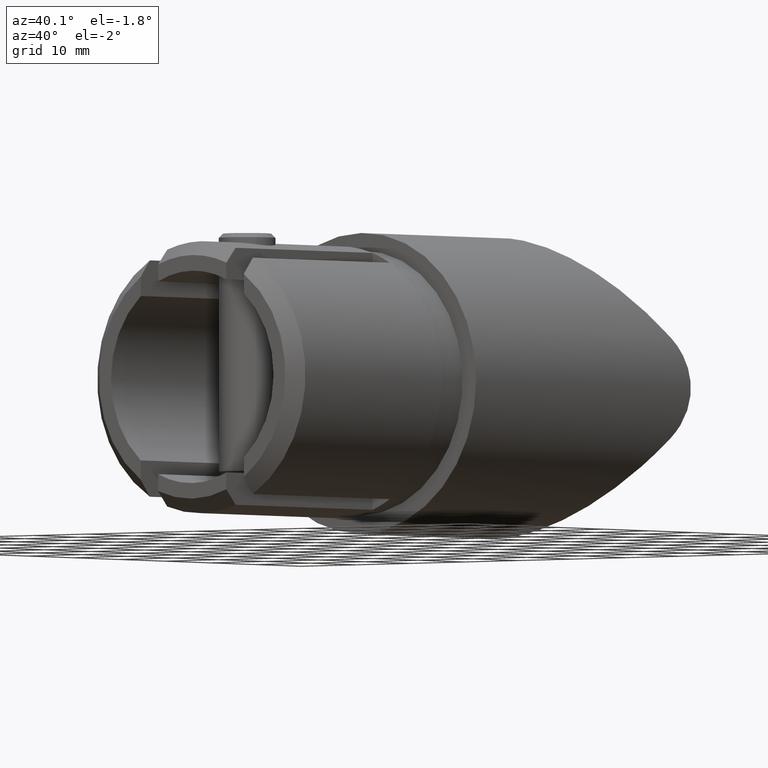
[diagram: clean part render]
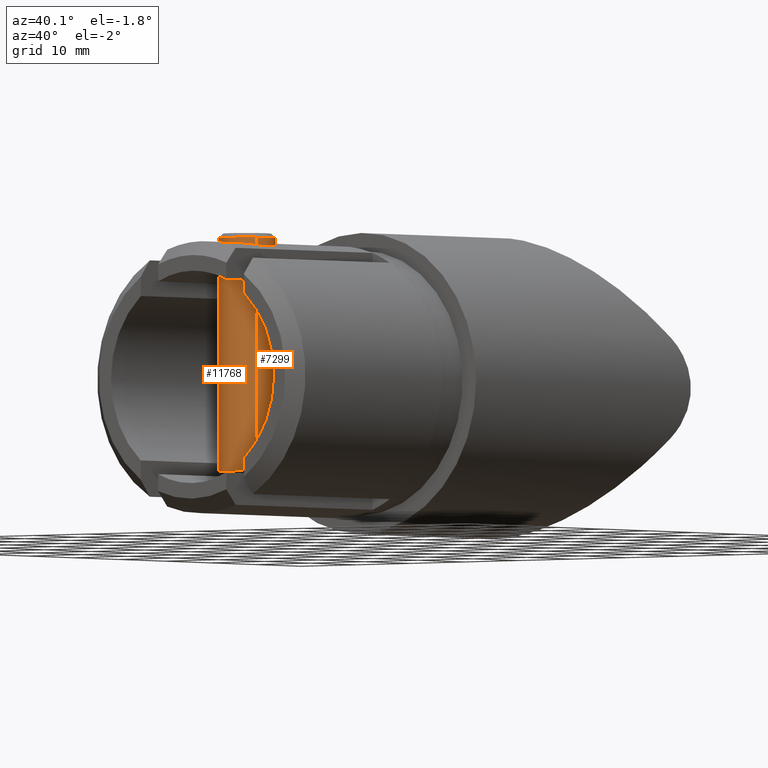
[diagram: same view with one multi-face feature highlighted, each face labeled with its STEP entity id]
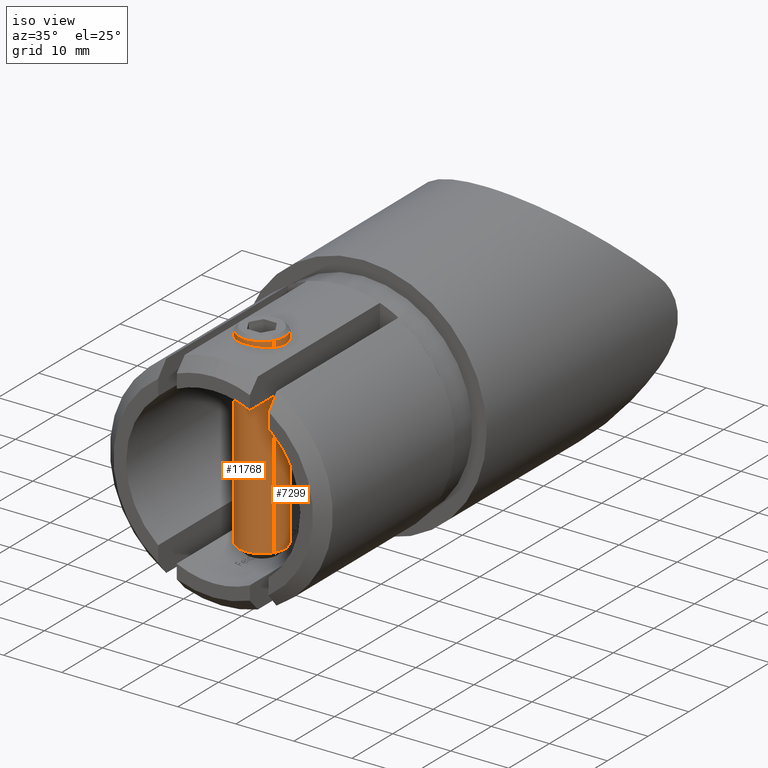
[diagram: same view with one multi-face feature highlighted, each face labeled with its STEP entity id]
A machine part, auxiliary view. The highlighted faces form ONE feature: a constant-radius fillet chain: 2 tangent blend faces with common blend radius 4 mm. The faces share edges in the B-rep.
A second angle (iso view) of the same feature is appended — it is thin or edge-on in the first view.
Their STEP definitions:
[1] entity #7299 (Cylinder):
#329 = FACE_OUTER_BOUND ( 'NONE', #10681, .T. ) ;
#516 = CARTESIAN_POINT ( 'NONE',  ( 34.39999999999999900, 0.0000000000000000000, 0.0000000000000000000 ) ) ;
#563 = DIRECTION ( 'NONE',  ( -1.000000000000000000, 0.0000000000000000000, 0.0000000000000000000 ) ) ;
#940 = VECTOR ( 'NONE', #1362, 1000.000000000000000 ) ;
#1211 = ORIENTED_EDGE ( 'NONE', *, *, #5603, .T. ) ;
#1362 = DIRECTION ( 'NONE',  ( -1.000000000000000000, -0.0000000000000000000, -0.0000000000000000000 ) ) ;
#1848 = CIRCLE ( 'NONE', #11188, 4.000000000000000000 ) ;
#2180 = DIRECTION ( 'NONE',  ( -1.000000000000000000, -0.0000000000000000000, -0.0000000000000000000 ) ) ;
#2221 = EDGE_CURVE ( 'NONE', #11868, #7661, #8798, .T. ) ;
#2240 = CARTESIAN_POINT ( 'NONE',  ( 1.399999999999984400, 4.898587196589412800E-016, -4.000000000000000000 ) ) ;
#2951 = ORIENTED_EDGE ( 'NONE', *, *, #11645, .T. ) ;
#3345 = DIRECTION ( 'NONE',  ( -1.000000000000000000, 3.242134472605236300E-017, -0.0000000000000000000 ) ) ;
#3687 = VERTEX_POINT ( 'NONE', #2240 ) ;
#4106 = CARTESIAN_POINT ( 'NONE',  ( 34.39999999999999900, 4.898587196589412800E-016, -4.000000000000000000 ) ) ;
#4147 = EDGE_CURVE ( 'NONE', #5419, #3687, #6231, .T. ) ;
#4290 = CARTESIAN_POINT ( 'NONE',  ( 1.399999999999984400, -4.538988261647280400E-017, 0.0000000000000000000 ) ) ;
#4649 = CARTESIAN_POINT ( 'NONE',  ( 35.00000000000000000, 0.0000000000000000000, 4.000000000000000000 ) ) ;
#5381 = DIRECTION ( 'NONE',  ( -5.421010862427522200E-017, -1.000000000000000000, 0.0000000000000000000 ) ) ;
#5419 = VERTEX_POINT ( 'NONE', #10286 ) ;
#5528 = ORIENTED_EDGE ( 'NONE', *, *, #4147, .F. ) ;
#5603 = EDGE_CURVE ( 'NONE', #11868, #7201, #12631, .T. ) ;
#5700 = CARTESIAN_POINT ( 'NONE',  ( 1.399999999999984400, -4.538988261647280400E-017, 0.0000000000000000000 ) ) ;
#5792 = DIRECTION ( 'NONE',  ( -5.421010862427522200E-017, -1.000000000000000000, 0.0000000000000000000 ) ) ;
#6231 = CIRCLE ( 'NONE', #10540, 4.000000000000000000 ) ;
#6305 = VECTOR ( 'NONE', #8899, 1000.000000000000000 ) ;
#6355 = CARTESIAN_POINT ( 'NONE',  ( 35.00000000000000000, 4.898587196589412800E-016, -4.000000000000000000 ) ) ;
#6395 = ORIENTED_EDGE ( 'NONE', *, *, #2221, .F. ) ;
#6707 = AXIS2_PLACEMENT_3D ( 'NONE', #516, #563, #12077 ) ;
#6924 = LINE ( 'NONE', #6355, #940 ) ;
#7201 = VERTEX_POINT ( 'NONE', #4106 ) ;
#7299 = ADVANCED_FACE ( 'NONE', ( #329 ), #12723, .T. ) ;
#7661 = VERTEX_POINT ( 'NONE', #8211 ) ;
#7966 = DIRECTION ( 'NONE',  ( -1.000000000000000000, 3.242134472605236300E-017, -0.0000000000000000000 ) ) ;
#8211 = CARTESIAN_POINT ( 'NONE',  ( 1.399999999999984400, 0.0000000000000000000, 4.000000000000000000 ) ) ;
#8226 = CARTESIAN_POINT ( 'NONE',  ( 35.00000000000000000, 0.0000000000000000000, 0.0000000000000000000 ) ) ;
#8798 = LINE ( 'NONE', #4649, #6305 ) ;
#8899 = DIRECTION ( 'NONE',  ( -1.000000000000000000, -0.0000000000000000000, -0.0000000000000000000 ) ) ;
#9277 = DIRECTION ( 'NONE',  ( 0.0000000000000000000, 0.0000000000000000000, 1.000000000000000000 ) ) ;
#10286 = CARTESIAN_POINT ( 'NONE',  ( 1.399999999999984400, 4.000000000000000000, 0.0000000000000000000 ) ) ;
#10540 = AXIS2_PLACEMENT_3D ( 'NONE', #5700, #7966, #5792 ) ;
#10681 = EDGE_LOOP ( 'NONE', ( #1211, #2951, #5528, #12947, #6395 ) ) ;
#11012 = EDGE_CURVE ( 'NONE', #7661, #5419, #1848, .T. ) ;
#11188 = AXIS2_PLACEMENT_3D ( 'NONE', #4290, #3345, #5381 ) ;
#11390 = CARTESIAN_POINT ( 'NONE',  ( 34.39999999999999900, 0.0000000000000000000, 4.000000000000000000 ) ) ;
#11645 = EDGE_CURVE ( 'NONE', #7201, #3687, #6924, .T. ) ;
#11868 = VERTEX_POINT ( 'NONE', #11390 ) ;
#12077 = DIRECTION ( 'NONE',  ( 0.0000000000000000000, 0.0000000000000000000, -1.000000000000000000 ) ) ;
#12511 = AXIS2_PLACEMENT_3D ( 'NONE', #8226, #2180, #9277 ) ;
#12631 = CIRCLE ( 'NONE', #6707, 4.000000000000000000 ) ;
#12723 = CYLINDRICAL_SURFACE ( 'NONE', #12511, 4.000000000000000000 ) ;
#12947 = ORIENTED_EDGE ( 'NONE', *, *, #11012, .F. ) ;
[2] entity #11768 (Cylinder):
#442 = CYLINDRICAL_SURFACE ( 'NONE', #3175, 4.000000000000000000 ) ;
#940 = VECTOR ( 'NONE', #1362, 1000.000000000000000 ) ;
#1074 = EDGE_CURVE ( 'NONE', #3687, #9748, #4647, .T. ) ;
#1362 = DIRECTION ( 'NONE',  ( -1.000000000000000000, -0.0000000000000000000, -0.0000000000000000000 ) ) ;
#1436 = EDGE_CURVE ( 'NONE', #9748, #7661, #8897, .T. ) ;
#1466 = ORIENTED_EDGE ( 'NONE', *, *, #11645, .F. ) ;
#2221 = EDGE_CURVE ( 'NONE', #11868, #7661, #8798, .T. ) ;
#2240 = CARTESIAN_POINT ( 'NONE',  ( 1.399999999999984400, 4.898587196589412800E-016, -4.000000000000000000 ) ) ;
#2562 = CARTESIAN_POINT ( 'NONE',  ( 34.39999999999999900, 0.0000000000000000000, 0.0000000000000000000 ) ) ;
#2709 = ORIENTED_EDGE ( 'NONE', *, *, #1074, .F. ) ;
#3113 = DIRECTION ( 'NONE',  ( 0.0000000000000000000, 0.0000000000000000000, 1.000000000000000000 ) ) ;
#3175 = AXIS2_PLACEMENT_3D ( 'NONE', #10431, #8432, #3113 ) ;
#3687 = VERTEX_POINT ( 'NONE', #2240 ) ;
#3912 = CARTESIAN_POINT ( 'NONE',  ( 1.399999999999984400, -4.000000000000000000, 4.898587196589412800E-016 ) ) ;
#4106 = CARTESIAN_POINT ( 'NONE',  ( 34.39999999999999900, 4.898587196589412800E-016, -4.000000000000000000 ) ) ;
#4494 = ORIENTED_EDGE ( 'NONE', *, *, #2221, .T. ) ;
#4647 = CIRCLE ( 'NONE', #12705, 4.000000000000000000 ) ;
#4649 = CARTESIAN_POINT ( 'NONE',  ( 35.00000000000000000, 0.0000000000000000000, 4.000000000000000000 ) ) ;
#5146 = EDGE_CURVE ( 'NONE', #7201, #11868, #8643, .T. ) ;
#5215 = AXIS2_PLACEMENT_3D ( 'NONE', #2562, #9846, #12931 ) ;
#5955 = FACE_OUTER_BOUND ( 'NONE', #8938, .T. ) ;
#6305 = VECTOR ( 'NONE', #8899, 1000.000000000000000 ) ;
#6355 = CARTESIAN_POINT ( 'NONE',  ( 35.00000000000000000, 4.898587196589412800E-016, -4.000000000000000000 ) ) ;
#6676 = DIRECTION ( 'NONE',  ( -5.421010862427522200E-017, -1.000000000000000000, 0.0000000000000000000 ) ) ;
#6722 = DIRECTION ( 'NONE',  ( -1.000000000000000000, 3.242134472605236300E-017, -0.0000000000000000000 ) ) ;
#6924 = LINE ( 'NONE', #6355, #940 ) ;
#7201 = VERTEX_POINT ( 'NONE', #4106 ) ;
#7661 = VERTEX_POINT ( 'NONE', #8211 ) ;
#7790 = CARTESIAN_POINT ( 'NONE',  ( 1.399999999999984400, -4.538988261647280400E-017, 0.0000000000000000000 ) ) ;
#8211 = CARTESIAN_POINT ( 'NONE',  ( 1.399999999999984400, 0.0000000000000000000, 4.000000000000000000 ) ) ;
#8432 = DIRECTION ( 'NONE',  ( -1.000000000000000000, -0.0000000000000000000, -0.0000000000000000000 ) ) ;
#8643 = CIRCLE ( 'NONE', #5215, 4.000000000000000000 ) ;
#8798 = LINE ( 'NONE', #4649, #6305 ) ;
#8897 = CIRCLE ( 'NONE', #11098, 4.000000000000000000 ) ;
#8899 = DIRECTION ( 'NONE',  ( -1.000000000000000000, -0.0000000000000000000, -0.0000000000000000000 ) ) ;
#8938 = EDGE_LOOP ( 'NONE', ( #1466, #9730, #4494, #9863, #2709 ) ) ;
#9730 = ORIENTED_EDGE ( 'NONE', *, *, #5146, .T. ) ;
#9748 = VERTEX_POINT ( 'NONE', #3912 ) ;
#9846 = DIRECTION ( 'NONE',  ( -1.000000000000000000, 0.0000000000000000000, 0.0000000000000000000 ) ) ;
#9863 = ORIENTED_EDGE ( 'NONE', *, *, #1436, .F. ) ;
#10067 = CARTESIAN_POINT ( 'NONE',  ( 1.399999999999984400, -4.538988261647280400E-017, 0.0000000000000000000 ) ) ;
#10431 = CARTESIAN_POINT ( 'NONE',  ( 35.00000000000000000, 0.0000000000000000000, 0.0000000000000000000 ) ) ;
#11069 = DIRECTION ( 'NONE',  ( -5.421010862427522200E-017, -1.000000000000000000, 0.0000000000000000000 ) ) ;
#11098 = AXIS2_PLACEMENT_3D ( 'NONE', #7790, #6722, #6676 ) ;
#11390 = CARTESIAN_POINT ( 'NONE',  ( 34.39999999999999900, 0.0000000000000000000, 4.000000000000000000 ) ) ;
#11645 = EDGE_CURVE ( 'NONE', #7201, #3687, #6924, .T. ) ;
#11768 = ADVANCED_FACE ( 'NONE', ( #5955 ), #442, .T. ) ;
#11868 = VERTEX_POINT ( 'NONE', #11390 ) ;
#12151 = DIRECTION ( 'NONE',  ( -1.000000000000000000, 3.242134472605236300E-017, -0.0000000000000000000 ) ) ;
#12705 = AXIS2_PLACEMENT_3D ( 'NONE', #10067, #12151, #11069 ) ;
#12931 = DIRECTION ( 'NONE',  ( 0.0000000000000000000, 0.0000000000000000000, -1.000000000000000000 ) ) ;